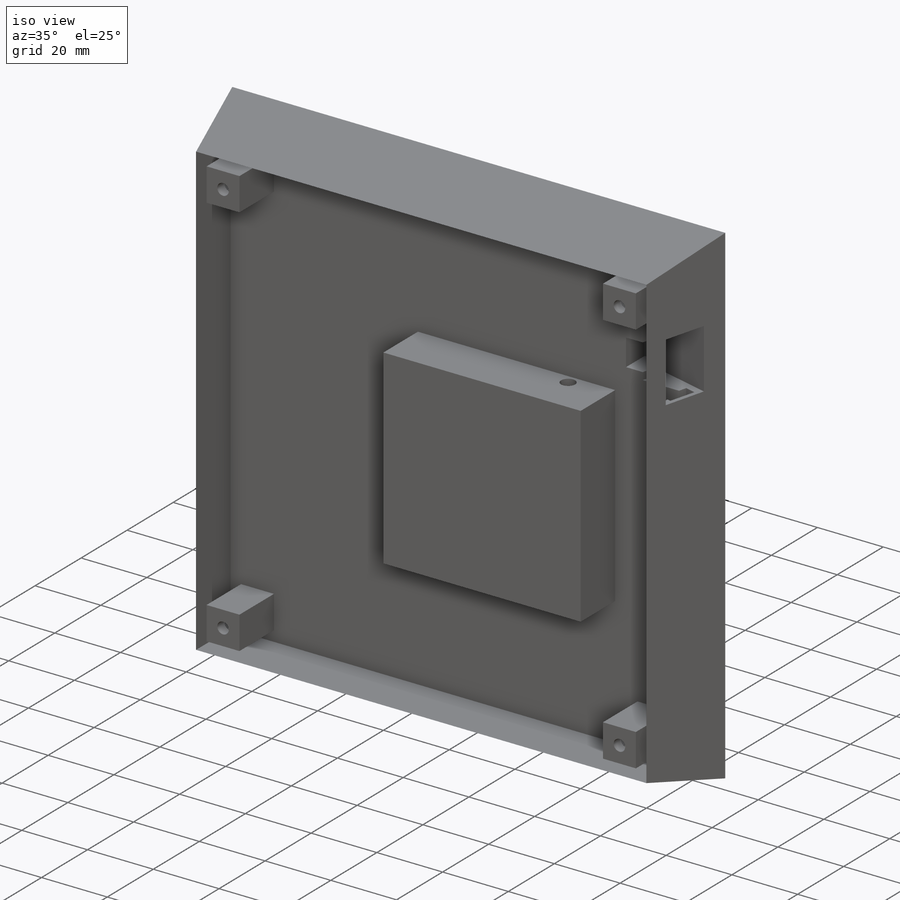
[diagram: iso view]
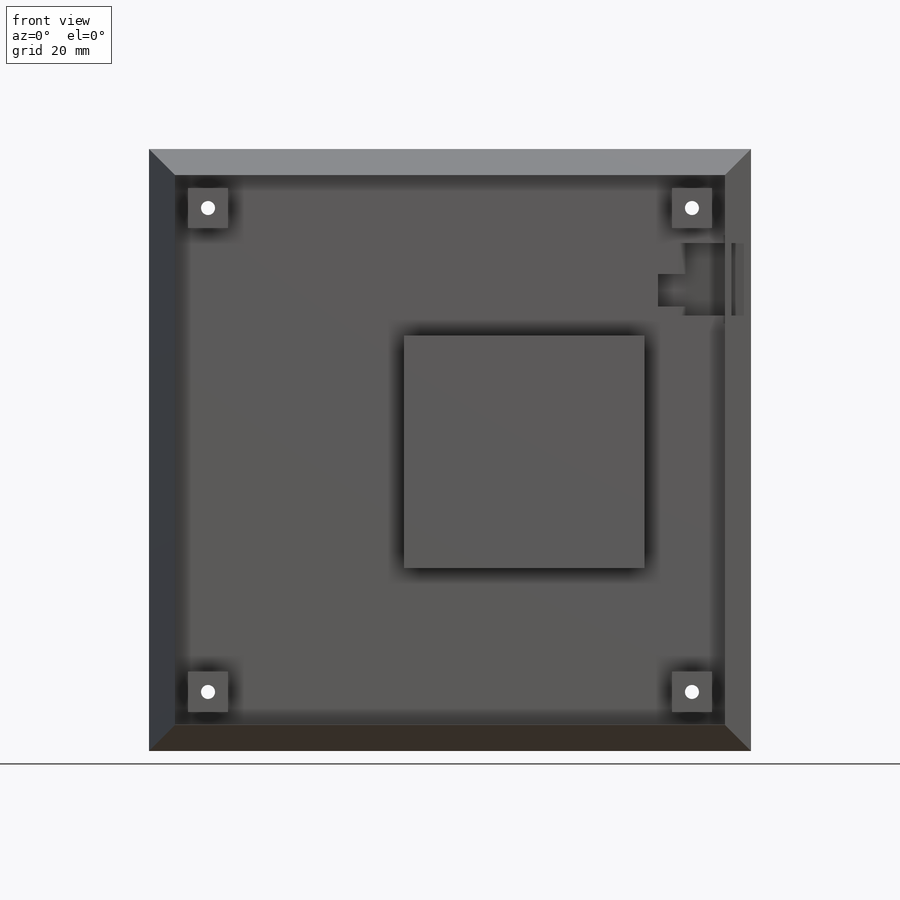
[diagram: front view]
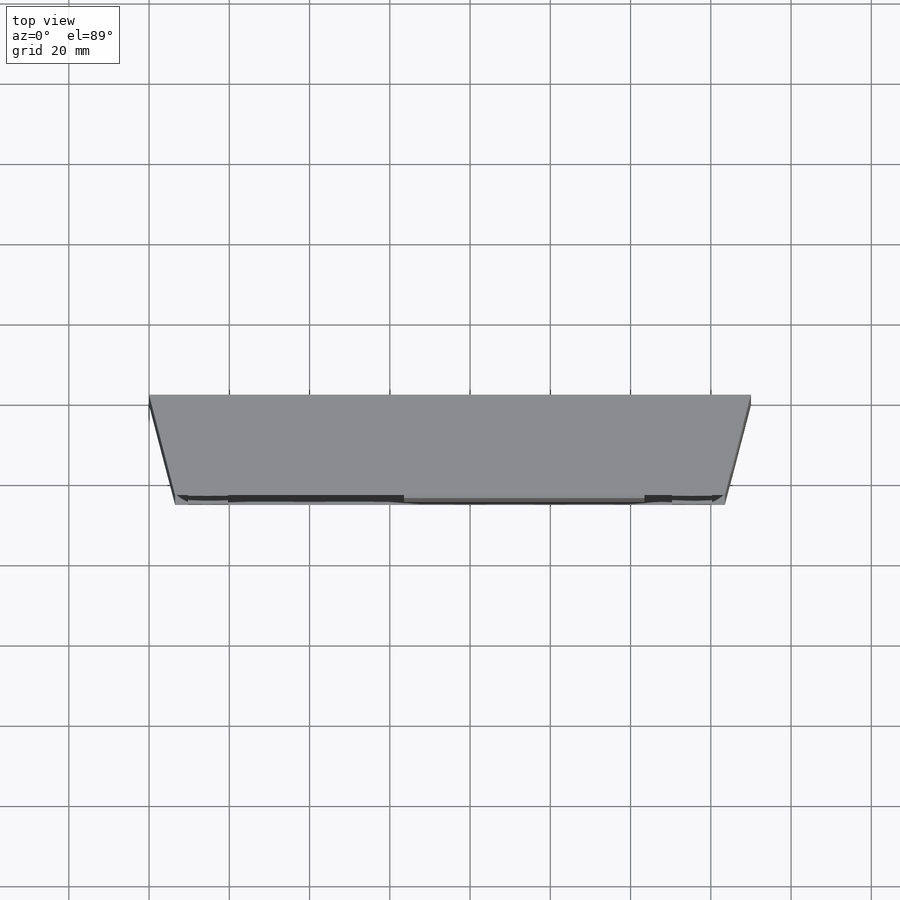
[diagram: top view]
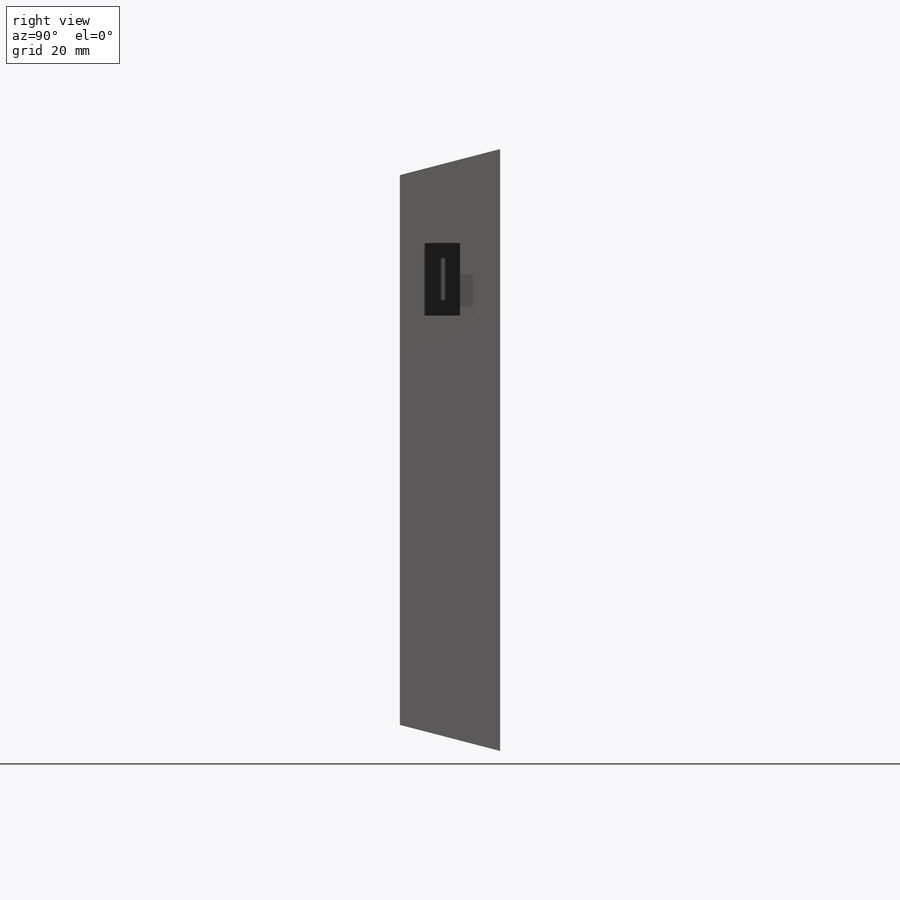
[diagram: right view]
SOLIDWORKS PART (.sldprt)
format: sldprt  version: not decoded by parser v0  size: 472,576 bytes
history: native  units: mm
features: sketch x11, cut_extrude x10, plane x3, material x1, extrude x1, chamfer x1 (+9 scaffold rows collapsed)
feature tree (36):
  scaffold x9  (default folders/planes/origin — collapsed)
  material  "Matériau <non spécifié>"
  plane  "Plan de face"
  plane  "Plan de dessus"
  plane  "Plan de droite"
  sketch  "Esquisse1"  dims[D1=150.0mm D2=150.0mm]
  extrude  "Boss.-Extru.1"  Depth=25mm
  chamfer  "Chanfrein1"  Distance=25mm
  sketch  "Esquisse2"  dims[c1.D9=3.5mm c1.D1=3.2mm c1.D2=3.2mm c1.D3=3.2mm c1.D4=3.2mm c1.D5=3.2mm c1.D6=3.2mm c1.D7=3.2mm c1.D8=3.2mm c2.D9=~17.962858mm c2.D10=10.0mm c2.D11=~15.350079mm c2.D12=~19.922443mm c2.D13=~19.922443mm c2.D14=~15.350079mm c2.D15=~17.962858mm c2.D16=~15.350079mm c3.D11=60.0mm c3.D12=58.0mm c3.D13=40.0mm c3.D14=20.0mm]
  cut_extrude  "Enlèv. mat.-Extru.2"  Depth=15mm
  sketch  "Esquisse3"  dims[D1=12.5mm D2=18.0mm D3=7.0mm D4=17.0mm]
  cut_extrude  "Enlèv. mat.-Extru.3"  Depth=15mm
  sketch  "Esquisse4"
  cut_extrude  "Enlèv. mat.-Extru.4"  Depth=2mm
  sketch  "Esquisse5"  dims[D1=2.0mm D2=2.0mm D3=2.0mm D4=2.0mm]
  sketch  "Esquisse6"  dims[D1=2.0mm D2=2.0mm D3=2.0mm D4=2.0mm]
  cut_extrude  "Enlèv. mat.-Extru.7"  Depth=8mm
  cut_extrude  "Enlèv. mat.-Extru.6"  Depth=22mm
  sketch  "Esquisse7"  dims[D1=8.0mm D2=8.0mm D3=4.0mm D4=4.0mm D5=5.0mm D6=5.0mm D7=2.0mm D8=2.0mm]
  cut_extrude  "Enlèv. mat.-Extru.13"  Depth=8mm
  sketch  "Esquisse8"
  cut_extrude  "Enlèv. mat.-Extru.9"  Depth=8mm
  sketch  "Esquisse9"
  cut_extrude  "Enlèv. mat.-Extru.10"  Depth=22mm
  sketch  "Esquisse10"
  cut_extrude  "Enlèv. mat.-Extru.11"  Depth=8mm
  sketch  "Esquisse11"  dims[c1.D1=10.0mm c1.D2=21.0mm c1.D3=2.0mm c1.D4=4.0mm c2.D1=2.0mm c2.D2=24.0mm]
  cut_extrude  "Enlèv. mat.-Extru.12"  Depth=8mm
decode coverage: 19 of 23 modeling features carry decoded parameters
note: ~ marks probable driven/reference dimensions
note: suppression state not decoded; provenance and decode notes live in map.json
